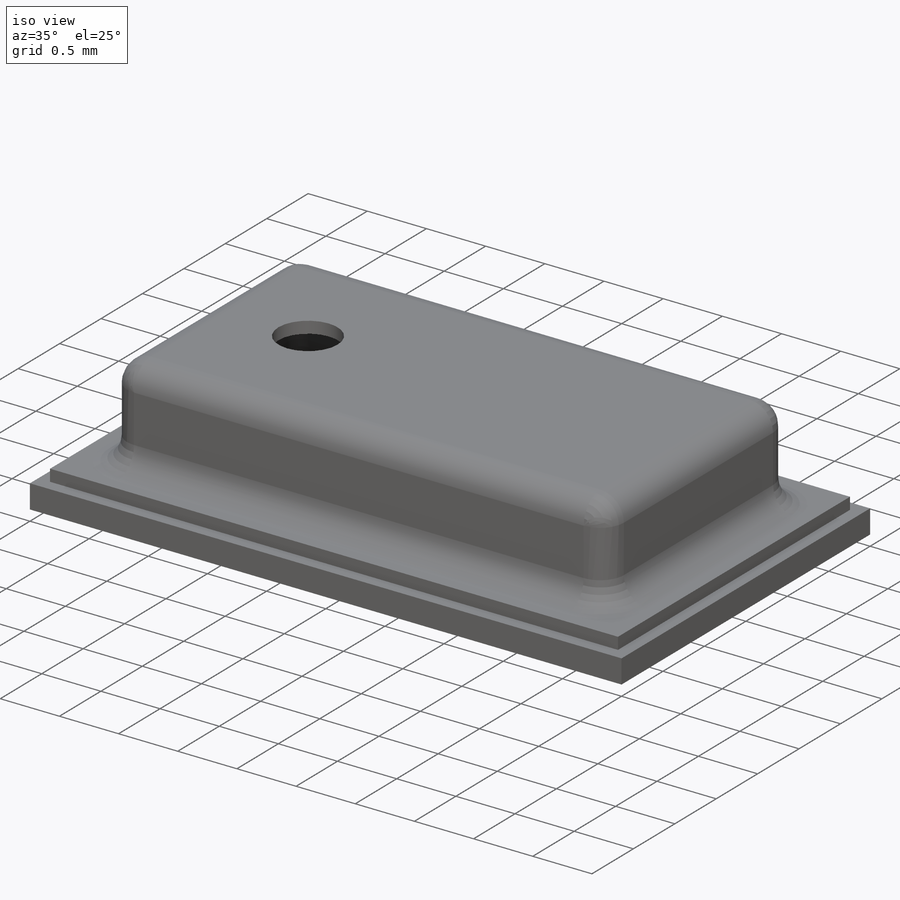
[diagram: iso view]
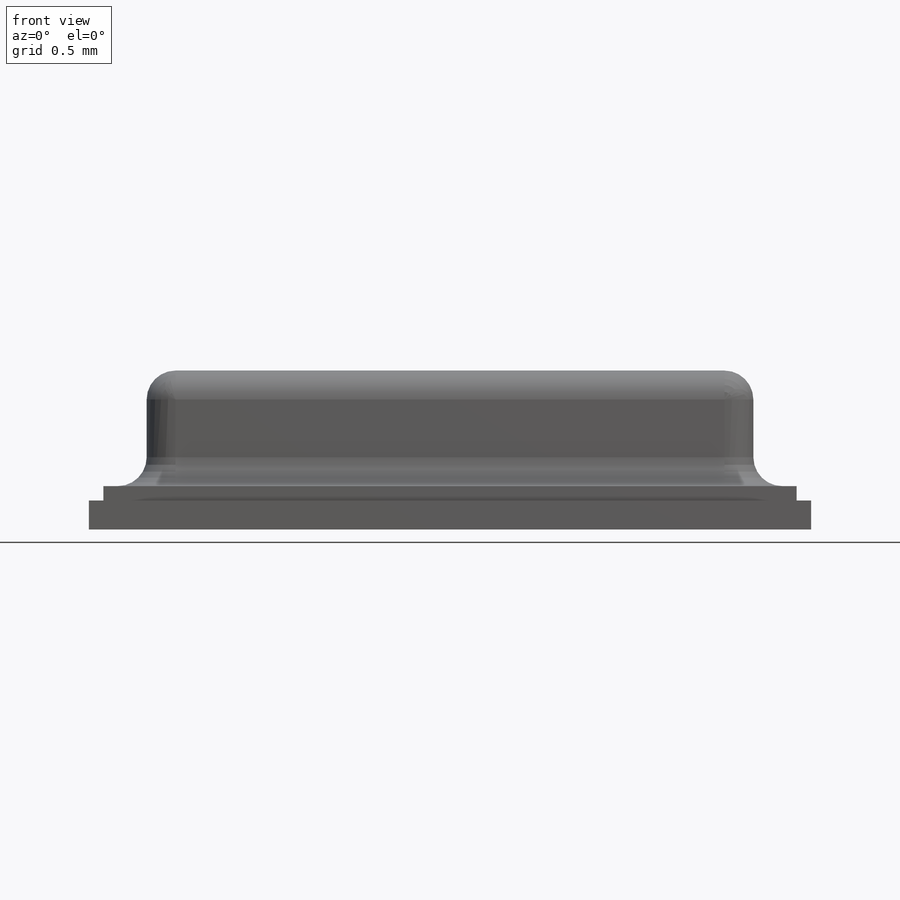
[diagram: front view]
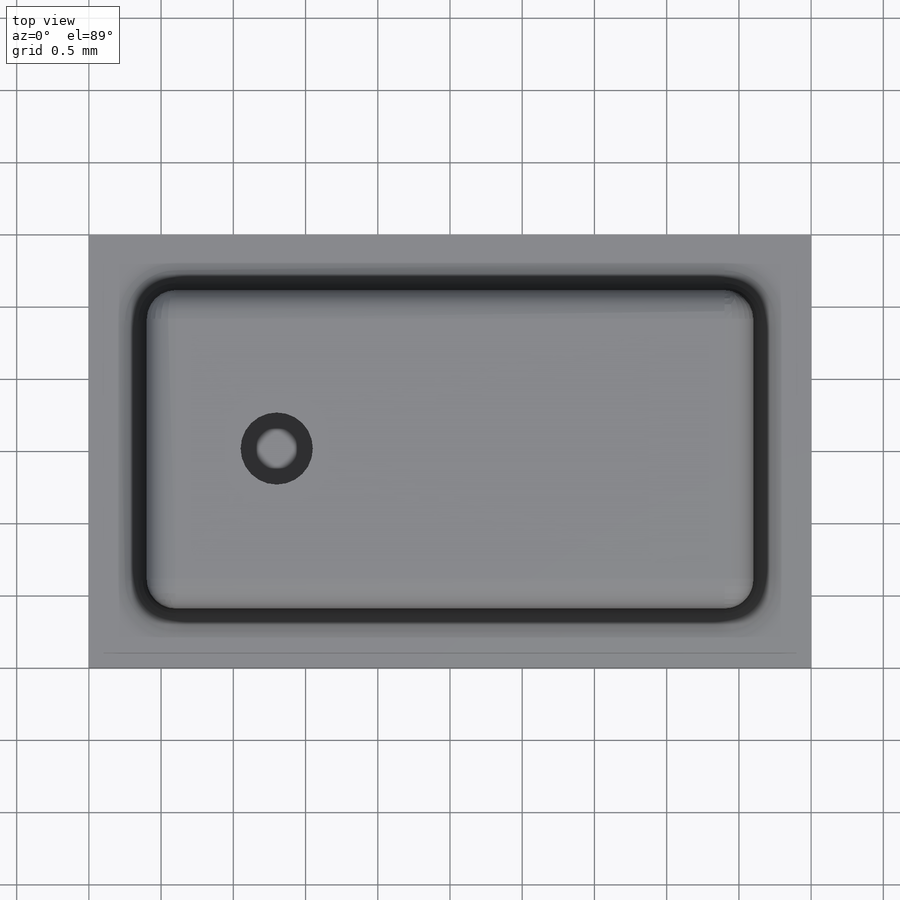
[diagram: top view]
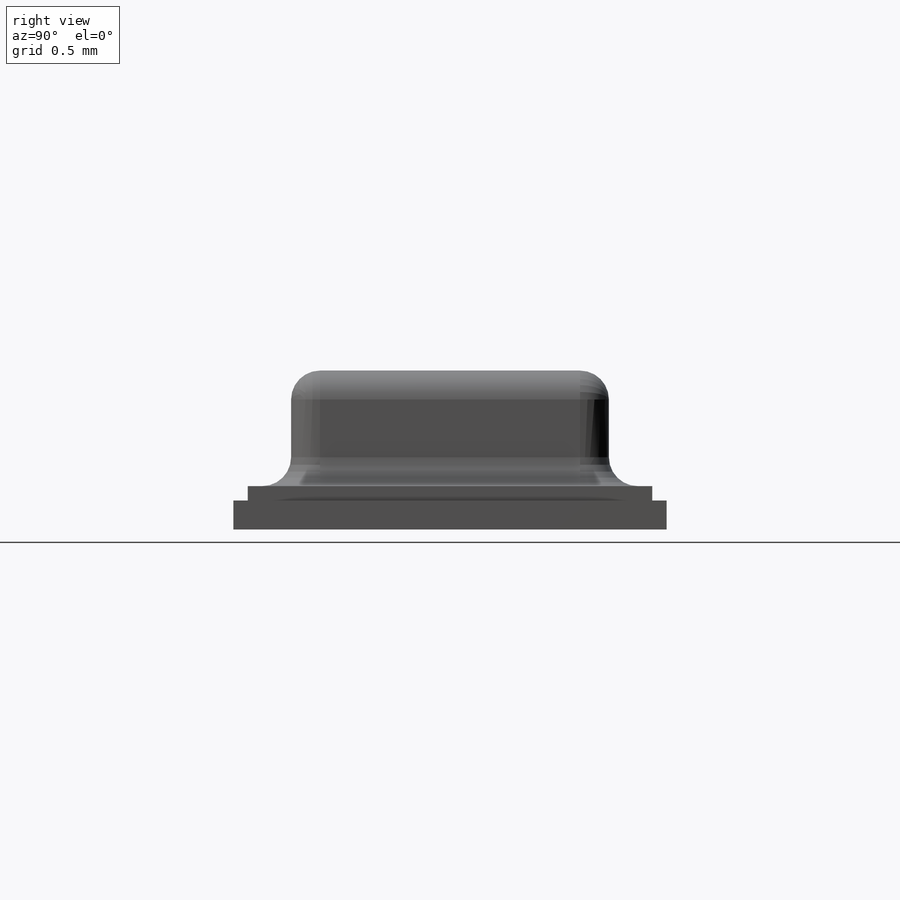
[diagram: right view]
SOLIDWORKS PART (.sldprt)
format: sldprt  version: not decoded by parser v0  size: 319,488 bytes
history: native  units: mm
features: sketch x4, extrude x3, material x1, plane x1, fillet x1, shell x1, cut_extrude x1 (+16 scaffold rows collapsed)
feature tree (28):
  scaffold x16  (default folders/planes/origin — collapsed)
  material  "Material <not specified>"
  plane  "Plane1"  Offset=0.2mm
  sketch  "Sketch1"  dims[D1=3.0mm D2=5.0mm]
  sketch  "Sketch2"  dims[D1=4.8mm D2=2.8mm]
  extrude  "Boss-Extrude2"  Depth=0.1mm
  sketch  "Sketch3"  dims[D1=0.3mm D2=0.3mm]
  extrude  "Boss-Extrude3"  Depth=0.8mm
  fillet  "Fillet1"  Radius=0.2mm
  shell  "Shell3"  Thickness=0.1mm
  extrude  "Boss-Extrude4"  Depth=0.2mm
  sketch  "Sketch4"  dims[D1=0.5mm D2=1.3mm]
  cut_extrude  "Cut-Extrude1"  Depth=0.2mm
decode coverage: 10 of 10 modeling features carry decoded parameters
note: suppression state not decoded; provenance and decode notes live in map.json
